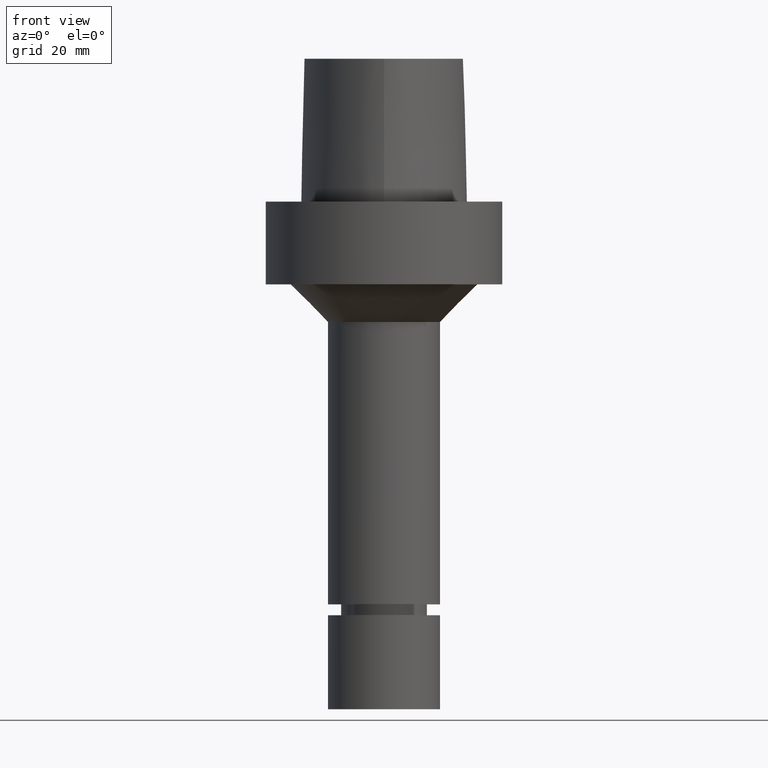
[diagram: clean part render]
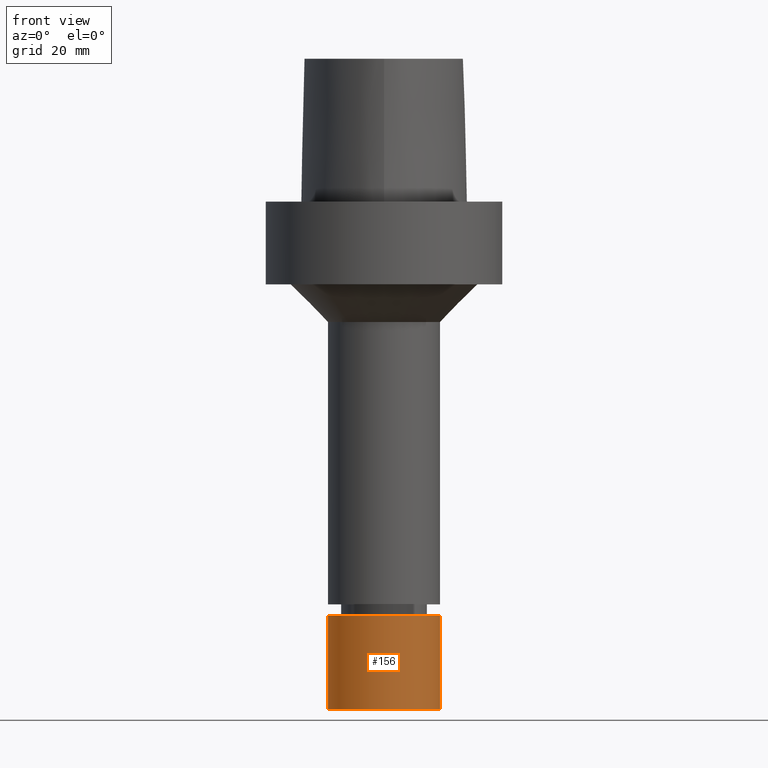
[diagram: same view with one face highlighted and labeled with its STEP entity id]
A machine part, front view. The second image highlights one B-rep face of the part: STEP entity #156.
In plain terms, the highlighted cylindrical surface (bore or boss wall) has radius 15 mm, axis along (0, 0, -1).
Its self-contained STEP definition (entity closure, byte-faithful):
#120=EDGE_CURVE('Unnamed[1]',#263,#263,#264,.T.);
#129=EDGE_CURVE('Unnamed[1]',#275,#275,#276,.T.);
#156=ADVANCED_FACE('Unnamed[1]',(#313,#314),#315,.T.);
#263=VERTEX_POINT('',#537);
#264=CIRCLE('',#538,15.0);
#275=VERTEX_POINT('',#552);
#276=CIRCLE('',#553,15.0000000000001);
#313=FACE_BOUND('',#618,.T.);
#314=FACE_BOUND('',#619,.T.);
#315=CYLINDRICAL_SURFACE('',#620,15.0);
#537=CARTESIAN_POINT('',(8.26636589424463E-015,15.0,-135.0));
#538=AXIS2_PLACEMENT_3D('',#816,#817,#818);
#552=CARTESIAN_POINT('',(6.73555739531044E-015,15.0000000000001,-110.0));
#553=AXIS2_PLACEMENT_3D('',#826,#827,#828);
#618=EDGE_LOOP('',(#861));
#619=EDGE_LOOP('',(#862));
#620=AXIS2_PLACEMENT_3D('',#863,#864,#865);
#816=CARTESIAN_POINT('',(8.26636589424463E-015,1.65327317884893E-014,-135.0));
#817=DIRECTION('',(6.12323399573677E-017,1.22464679914735E-016,-1.0));
#818=DIRECTION('',(-1.23259516440783E-032,1.0,1.22464679914735E-016));
#826=CARTESIAN_POINT('',(6.73555739531044E-015,1.34711147906209E-014,-110.0));
#827=DIRECTION('',(6.12323399573677E-017,1.22464679914735E-016,-1.0));
#828=DIRECTION('',(-1.23259516440783E-032,1.0,1.22464679914735E-016));
#861=ORIENTED_EDGE('',*,*,#120,.F.);
#862=ORIENTED_EDGE('',*,*,#129,.T.);
#863=CARTESIAN_POINT('',(7.50096164477754E-015,1.50019232895551E-014,-122.5));
#864=DIRECTION('',(6.12323399573677E-017,1.22464679914735E-016,-1.0));
#865=DIRECTION('',(-1.23259516440783E-032,1.0,1.22464679914735E-016));